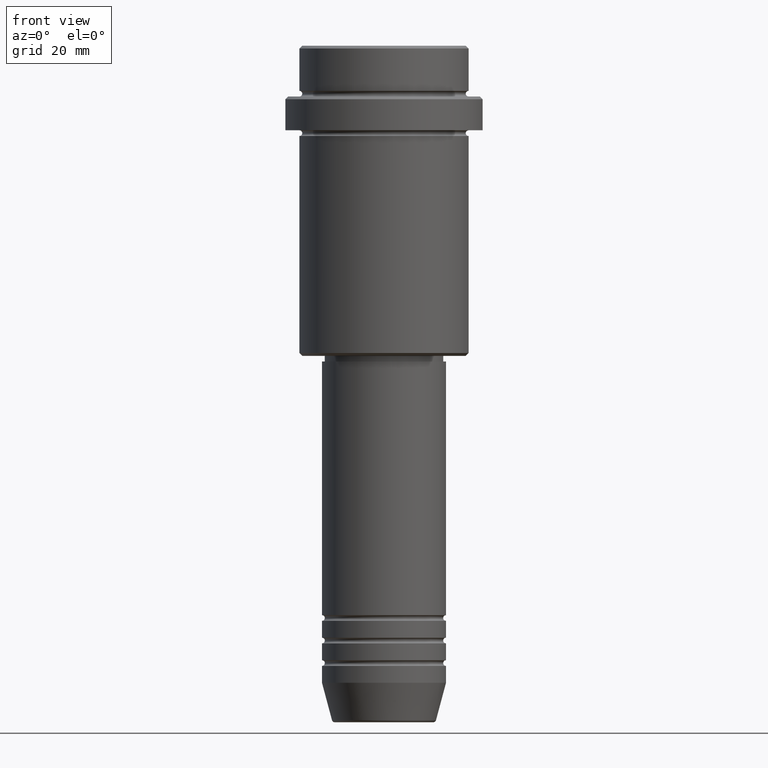
[diagram: clean part render]
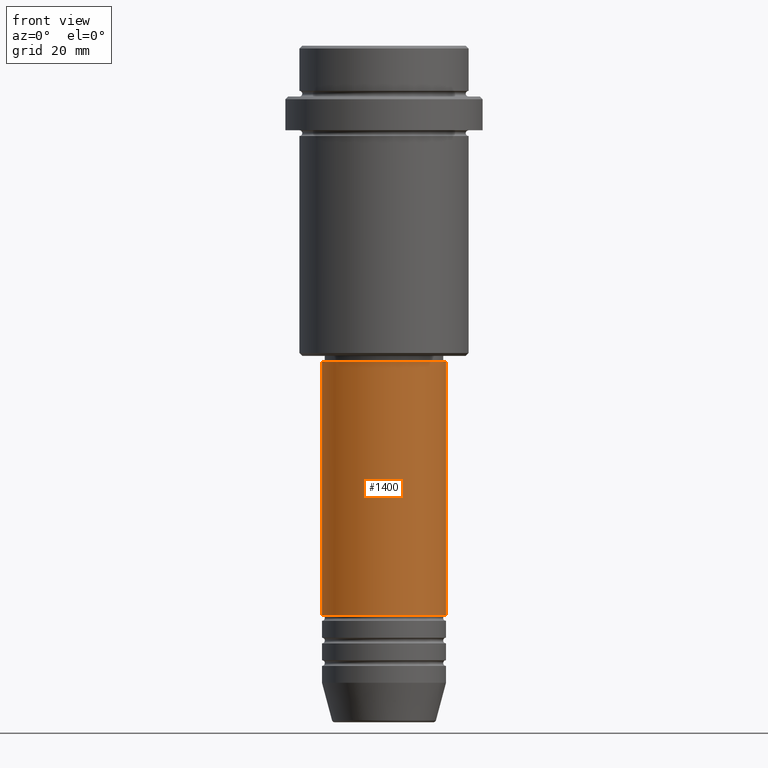
[diagram: same view with one face highlighted and labeled with its STEP entity id]
A machine part, front view. The second image highlights one B-rep face of the part: STEP entity #1400.
In plain terms, the highlighted cylindrical surface (partial cylindrical patch) has radius 11 mm, axis along (-0, -0, 1).
Its self-contained STEP definition (entity closure, byte-faithful):
#22 = ORIENTED_EDGE ( 'NONE', *, *, #885, .F. ) ;
#30 = LINE ( 'NONE', #708, #1343 ) ;
#161 = CARTESIAN_POINT ( 'NONE',  ( -11.00000000000000000, 1.347111479062088405E-15, -100.9999999999999005 ) ) ;
#164 = CARTESIAN_POINT ( 'NONE',  ( 0.000000000000000000, 0.000000000000000000, -56.00000000000002132 ) ) ;
#171 = AXIS2_PLACEMENT_3D ( 'NONE', #430, #658, #348 ) ;
#240 = CYLINDRICAL_SURFACE ( 'NONE', #998, 11.00000000000000000 ) ;
#245 = EDGE_CURVE ( 'NONE', #1110, #359, #882, .T. ) ;
#252 = AXIS2_PLACEMENT_3D ( 'NONE', #164, #938, #331 ) ;
#293 = ORIENTED_EDGE ( 'NONE', *, *, #245, .T. ) ;
#300 = VERTEX_POINT ( 'NONE', #1097 ) ;
#331 = DIRECTION ( 'NONE',  ( 1.000000000000000000, 0.000000000000000000, 0.000000000000000000 ) ) ;
#339 = EDGE_CURVE ( 'NONE', #359, #300, #726, .T. ) ;
#348 = DIRECTION ( 'NONE',  ( 1.000000000000000000, 0.000000000000000000, 0.000000000000000000 ) ) ;
#359 = VERTEX_POINT ( 'NONE', #1348 ) ;
#430 = CARTESIAN_POINT ( 'NONE',  ( 0.000000000000000000, 0.000000000000000000, -100.9999999999999005 ) ) ;
#486 = CIRCLE ( 'NONE', #252, 10.99999999999999822 ) ;
#594 = VECTOR ( 'NONE', #920, 1000.000000000000000 ) ;
#658 = DIRECTION ( 'NONE',  ( -0.000000000000000000, -0.000000000000000000, 1.000000000000000000 ) ) ;
#677 = DIRECTION ( 'NONE',  ( -0.000000000000000000, -0.000000000000000000, 1.000000000000000000 ) ) ;
#708 = CARTESIAN_POINT ( 'NONE',  ( -11.00000000000000000, 1.347111479062088405E-15, 0.000000000000000000 ) ) ;
#726 = LINE ( 'NONE', #1147, #594 ) ;
#787 = ORIENTED_EDGE ( 'NONE', *, *, #339, .T. ) ;
#830 = VERTEX_POINT ( 'NONE', #945 ) ;
#859 = DIRECTION ( 'NONE',  ( 1.000000000000000000, 0.000000000000000000, 0.000000000000000000 ) ) ;
#882 = CIRCLE ( 'NONE', #171, 11.00000000000000000 ) ;
#885 = EDGE_CURVE ( 'NONE', #830, #300, #486, .T. ) ;
#920 = DIRECTION ( 'NONE',  ( -0.000000000000000000, -0.000000000000000000, 1.000000000000000000 ) ) ;
#938 = DIRECTION ( 'NONE',  ( -0.000000000000000000, -0.000000000000000000, 1.000000000000000000 ) ) ;
#945 = CARTESIAN_POINT ( 'NONE',  ( -10.99999999999999822, 1.347111479062088207E-15, -56.00000000000002132 ) ) ;
#992 = EDGE_LOOP ( 'NONE', ( #1083, #293, #787, #22 ) ) ;
#998 = AXIS2_PLACEMENT_3D ( 'NONE', #1082, #677, #859 ) ;
#1065 = EDGE_CURVE ( 'NONE', #1110, #830, #30, .T. ) ;
#1082 = CARTESIAN_POINT ( 'NONE',  ( 0.000000000000000000, 0.000000000000000000, 0.000000000000000000 ) ) ;
#1083 = ORIENTED_EDGE ( 'NONE', *, *, #1065, .F. ) ;
#1097 = CARTESIAN_POINT ( 'NONE',  ( 10.99999999999999822, 0.000000000000000000, -56.00000000000002132 ) ) ;
#1109 = FACE_OUTER_BOUND ( 'NONE', #992, .T. ) ;
#1110 = VERTEX_POINT ( 'NONE', #161 ) ;
#1147 = CARTESIAN_POINT ( 'NONE',  ( 11.00000000000000000, 0.000000000000000000, 0.000000000000000000 ) ) ;
#1343 = VECTOR ( 'NONE', #1353, 1000.000000000000000 ) ;
#1348 = CARTESIAN_POINT ( 'NONE',  ( 11.00000000000000000, 0.000000000000000000, -100.9999999999999005 ) ) ;
#1353 = DIRECTION ( 'NONE',  ( -0.000000000000000000, -0.000000000000000000, 1.000000000000000000 ) ) ;
#1400 = ADVANCED_FACE ( 'NONE', ( #1109 ), #240, .T. ) ;